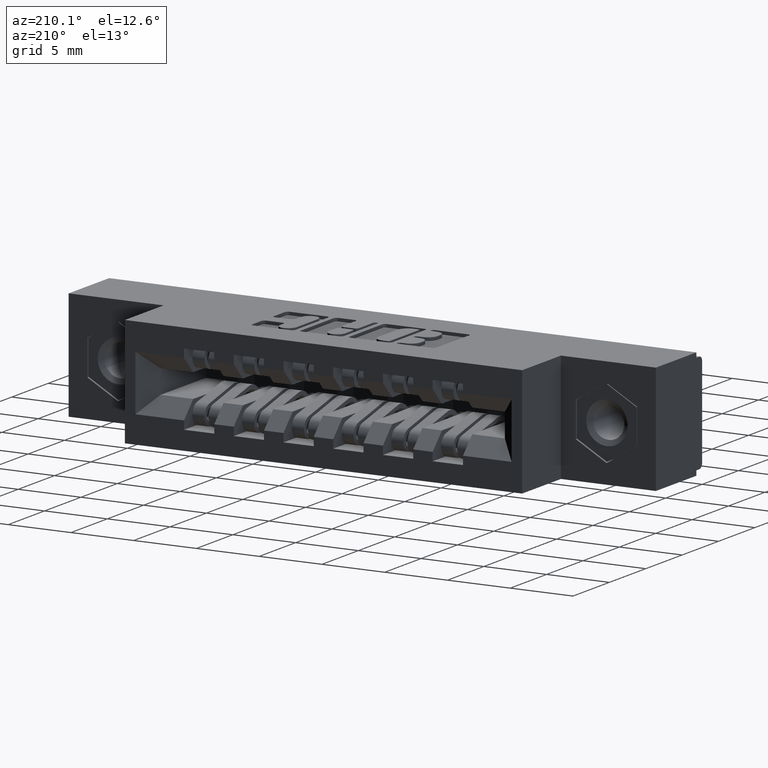
[diagram: clean part render]
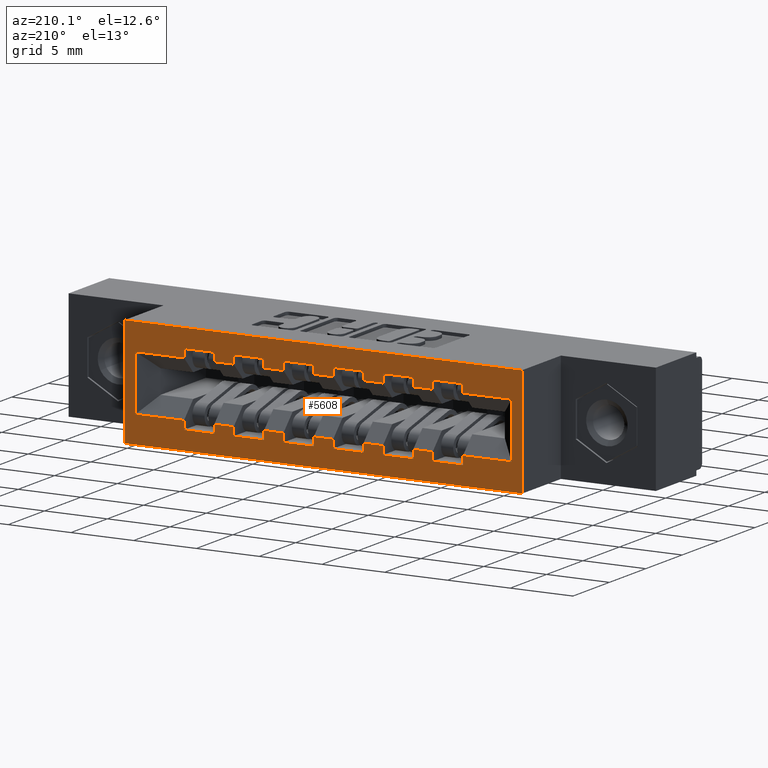
[diagram: same view with one face highlighted and labeled with its STEP entity id]
A machine part, auxiliary view. The second image highlights one B-rep face of the part: STEP entity #5608.
In plain terms, the highlighted planar face has unit normal (0, -1, 0).
Its self-contained STEP definition (entity closure, byte-faithful):
#9 = VECTOR ( 'NONE', #1275, 39.37007874015748100 ) ;
#32 = EDGE_CURVE ( 'NONE', #1190, #9764, #11883, .T. ) ;
#78 = DIRECTION ( 'NONE',  ( 1.000000000000000000, 0.0000000000000000000, 0.0000000000000000000 ) ) ;
#107 = LINE ( 'NONE', #4236, #10825 ) ;
#135 = ORIENTED_EDGE ( 'NONE', *, *, #2399, .T. ) ;
#174 = DIRECTION ( 'NONE',  ( 1.000000000000000000, -0.0000000000000000000, -0.0000000000000000000 ) ) ;
#177 = DIRECTION ( 'NONE',  ( 0.0000000000000000000, 0.0000000000000000000, 1.000000000000000000 ) ) ;
#189 = EDGE_CURVE ( 'NONE', #8305, #11585, #8267, .T. ) ;
#203 = VERTEX_POINT ( 'NONE', #1445 ) ;
#231 = VERTEX_POINT ( 'NONE', #4532 ) ;
#251 = CARTESIAN_POINT ( 'NONE',  ( 0.6395000000000020700, 0.4600000000000000200, -0.2845000000000002500 ) ) ;
#278 = VERTEX_POINT ( 'NONE', #9221 ) ;
#322 = EDGE_CURVE ( 'NONE', #4483, #11876, #4899, .T. ) ;
#334 = ORIENTED_EDGE ( 'NONE', *, *, #7805, .F. ) ;
#373 = CARTESIAN_POINT ( 'NONE',  ( 1.263500000000002100, 0.4600000000000000200, -0.08450000000000021400 ) ) ;
#376 = DIRECTION ( 'NONE',  ( -0.0000000000000000000, -0.0000000000000000000, 1.000000000000000000 ) ) ;
#397 = VECTOR ( 'NONE', #5510, 39.37007874015748100 ) ;
#420 = DIRECTION ( 'NONE',  ( -1.000000000000000000, 0.0000000000000000000, 0.0000000000000000000 ) ) ;
#430 = CARTESIAN_POINT ( 'NONE',  ( 0.6395000000000020700, 0.4600000000000000200, -0.05850000000000024600 ) ) ;
#434 = VECTOR ( 'NONE', #8488, 39.37007874015748100 ) ;
#528 = LINE ( 'NONE', #10393, #9610 ) ;
#552 = VECTOR ( 'NONE', #4460, 39.37007874015748100 ) ;
#553 = EDGE_CURVE ( 'NONE', #6314, #874, #12016, .T. ) ;
#567 = LINE ( 'NONE', #373, #10691 ) ;
#596 = DIRECTION ( 'NONE',  ( 0.0000000000000000000, 0.0000000000000000000, 1.000000000000000000 ) ) ;
#645 = ORIENTED_EDGE ( 'NONE', *, *, #10982, .T. ) ;
#835 = EDGE_CURVE ( 'NONE', #11053, #7250, #2498, .T. ) ;
#850 = VECTOR ( 'NONE', #5831, 39.37007874015748100 ) ;
#855 = DIRECTION ( 'NONE',  ( -0.0000000000000000000, -0.0000000000000000000, 1.000000000000000000 ) ) ;
#874 = VERTEX_POINT ( 'NONE', #6715 ) ;
#892 = VERTEX_POINT ( 'NONE', #9611 ) ;
#909 = VERTEX_POINT ( 'NONE', #12288 ) ;
#932 = ORIENTED_EDGE ( 'NONE', *, *, #5735, .F. ) ;
#974 = LINE ( 'NONE', #4375, #1569 ) ;
#1001 = EDGE_CURVE ( 'NONE', #278, #1085, #3075, .T. ) ;
#1003 = LINE ( 'NONE', #2609, #3221 ) ;
#1012 = DIRECTION ( 'NONE',  ( 1.000000000000000000, 0.0000000000000000000, 0.0000000000000000000 ) ) ;
#1032 = EDGE_CURVE ( 'NONE', #7010, #8651, #2182, .T. ) ;
#1082 = VERTEX_POINT ( 'NONE', #1231 ) ;
#1085 = VERTEX_POINT ( 'NONE', #10648 ) ;
#1114 = VERTEX_POINT ( 'NONE', #8967 ) ;
#1124 = LINE ( 'NONE', #11363, #12129 ) ;
#1163 = EDGE_CURVE ( 'NONE', #7263, #10275, #567, .T. ) ;
#1190 = VERTEX_POINT ( 'NONE', #9302 ) ;
#1231 = CARTESIAN_POINT ( 'NONE',  ( 1.511000000000002800, 0.4600000000000000200, -0.2585000000000002900 ) ) ;
#1238 = CARTESIAN_POINT ( 'NONE',  ( 0.6395000000000020700, 0.4600000000000000200, -0.2585000000000002900 ) ) ;
#1244 = CARTESIAN_POINT ( 'NONE',  ( 0.4835000000000020400, 0.4600000000000000200, -0.2585000000000002900 ) ) ;
#1250 = DIRECTION ( 'NONE',  ( 1.000000000000000000, -0.0000000000000000000, -0.0000000000000000000 ) ) ;
#1275 = DIRECTION ( 'NONE',  ( 1.000000000000000000, 0.0000000000000000000, 0.0000000000000000000 ) ) ;
#1277 = ORIENTED_EDGE ( 'NONE', *, *, #1032, .F. ) ;
#1283 = VECTOR ( 'NONE', #6217, 39.37007874015748100 ) ;
#1307 = CARTESIAN_POINT ( 'NONE',  ( 1.263500000000002100, 0.4600000000000000200, -0.05850000000000024600 ) ) ;
#1316 = EDGE_CURVE ( 'NONE', #11053, #5771, #8440, .T. ) ;
#1332 = VERTEX_POINT ( 'NONE', #3799 ) ;
#1346 = VERTEX_POINT ( 'NONE', #3845 ) ;
#1360 = VERTEX_POINT ( 'NONE', #6739 ) ;
#1430 = LINE ( 'NONE', #2660, #10061 ) ;
#1435 = LINE ( 'NONE', #2946, #4561 ) ;
#1445 = CARTESIAN_POINT ( 'NONE',  ( 1.358500000000001800, 0.4600000000000000200, -0.08450000000000021400 ) ) ;
#1449 = EDGE_CURVE ( 'NONE', #9267, #10489, #6515, .T. ) ;
#1488 = CARTESIAN_POINT ( 'NONE',  ( 0.0000000000000000000, 0.4600000000000000200, -0.2585000000000002900 ) ) ;
#1489 = LINE ( 'NONE', #1882, #5667 ) ;
#1545 = DIRECTION ( 'NONE',  ( 1.000000000000000000, -0.0000000000000000000, -0.0000000000000000000 ) ) ;
#1559 = EDGE_CURVE ( 'NONE', #909, #10972, #107, .T. ) ;
#1569 = VECTOR ( 'NONE', #6294, 39.37007874015748100 ) ;
#1590 = DIRECTION ( 'NONE',  ( 0.0000000000000000000, 0.0000000000000000000, 1.000000000000000000 ) ) ;
#1592 = LINE ( 'NONE', #2244, #12293 ) ;
#1612 = CARTESIAN_POINT ( 'NONE',  ( 1.358500000000001800, 0.4600000000000000200, -0.2845000000000002500 ) ) ;
#1617 = VECTOR ( 'NONE', #10244, 39.37007874015748100 ) ;
#1650 = LINE ( 'NONE', #2330, #7777 ) ;
#1697 = ORIENTED_EDGE ( 'NONE', *, *, #11688, .F. ) ;
#1720 = VECTOR ( 'NONE', #11564, 39.37007874015748100 ) ;
#1754 = LINE ( 'NONE', #1238, #11130 ) ;
#1783 = DIRECTION ( 'NONE',  ( 0.0000000000000000000, 0.0000000000000000000, -1.000000000000000000 ) ) ;
#1798 = CARTESIAN_POINT ( 'NONE',  ( 1.107500000000002100, 0.4600000000000000200, -0.2585000000000002900 ) ) ;
#1863 = VECTOR ( 'NONE', #9905, 39.37007874015748100 ) ;
#1865 = ORIENTED_EDGE ( 'NONE', *, *, #5960, .T. ) ;
#1882 = CARTESIAN_POINT ( 'NONE',  ( 0.8905000000000020700, 0.4600000000000000200, -0.2585000000000002900 ) ) ;
#1963 = VERTEX_POINT ( 'NONE', #10157 ) ;
#2015 = VERTEX_POINT ( 'NONE', #5659 ) ;
#2047 = EDGE_CURVE ( 'NONE', #5909, #203, #3351, .T. ) ;
#2063 = EDGE_CURVE ( 'NONE', #1332, #8651, #7691, .T. ) ;
#2098 = DIRECTION ( 'NONE',  ( 1.000000000000000000, -0.0000000000000000000, -0.0000000000000000000 ) ) ;
#2166 = LINE ( 'NONE', #6330, #552 ) ;
#2168 = DIRECTION ( 'NONE',  ( 0.0000000000000000000, 0.0000000000000000000, 1.000000000000000000 ) ) ;
#2182 = LINE ( 'NONE', #7873, #4438 ) ;
#2207 = LINE ( 'NONE', #9272, #1617 ) ;
#2244 = CARTESIAN_POINT ( 'NONE',  ( 0.7955000000000020900, 0.4600000000000000200, -0.05850000000000024600 ) ) ;
#2323 = EDGE_CURVE ( 'NONE', #909, #10008, #3034, .T. ) ;
#2330 = CARTESIAN_POINT ( 'NONE',  ( 1.263500000000002100, 0.4600000000000000200, -0.2845000000000002500 ) ) ;
#2372 = DIRECTION ( 'NONE',  ( 1.000000000000000000, -0.0000000000000000000, -0.0000000000000000000 ) ) ;
#2389 = ORIENTED_EDGE ( 'NONE', *, *, #5234, .T. ) ;
#2399 = EDGE_CURVE ( 'NONE', #2015, #8711, #1124, .T. ) ;
#2454 = EDGE_CURVE ( 'NONE', #7250, #1963, #11840, .T. ) ;
#2485 = VECTOR ( 'NONE', #9618, 39.37007874015748100 ) ;
#2498 = LINE ( 'NONE', #11425, #434 ) ;
#2509 = EDGE_CURVE ( 'NONE', #10008, #5497, #1435, .T. ) ;
#2548 = EDGE_LOOP ( 'NONE', ( #2875, #3645, #9530, #5025, #9592, #9402, #2389, #334, #11941, #9605, #2961, #1277, #932, #6733, #9344, #9488, #6691, #4915, #5798, #4332, #2676, #8455, #11193, #7210, #4903, #7943, #11581, #10913, #6822, #11171, #2932, #645, #8955, #12228, #1865, #10479, #6353, #5772, #4756, #9425, #1697, #4474, #7222, #9436, #10140, #135, #6161, #3800, #2602, #12180, #12193, #4805 ) ) ;
#2598 = EDGE_CURVE ( 'NONE', #2015, #7481, #974, .T. ) ;
#2600 = VECTOR ( 'NONE', #8579, 39.37007874015748100 ) ;
#2602 = ORIENTED_EDGE ( 'NONE', *, *, #1316, .F. ) ;
#2609 = CARTESIAN_POINT ( 'NONE',  ( 0.3310000000000020700, 0.4600000000000000200, -0.3430000000000000300 ) ) ;
#2611 = LINE ( 'NONE', #5581, #7403 ) ;
#2644 = CARTESIAN_POINT ( 'NONE',  ( 1.202500000000001900, 0.4600000000000000200, -0.2845000000000002500 ) ) ;
#2647 = DIRECTION ( 'NONE',  ( 0.0000000000000000000, 0.0000000000000000000, 1.000000000000000000 ) ) ;
#2660 = CARTESIAN_POINT ( 'NONE',  ( 0.0000000000000000000, 0.4600000000000000200, -0.2585000000000002900 ) ) ;
#2676 = ORIENTED_EDGE ( 'NONE', *, *, #1559, .F. ) ;
#2710 = VERTEX_POINT ( 'NONE', #1612 ) ;
#2741 = LINE ( 'NONE', #7474, #397 ) ;
#2745 = LINE ( 'NONE', #9866, #9318 ) ;
#2771 = EDGE_CURVE ( 'NONE', #6227, #4884, #10218, .T. ) ;
#2781 = CARTESIAN_POINT ( 'NONE',  ( 0.5785000000000020100, 0.4600000000000000200, -0.2845000000000002500 ) ) ;
#2801 = CARTESIAN_POINT ( 'NONE',  ( 1.202500000000001900, 0.4600000000000000200, -0.08450000000000021400 ) ) ;
#2834 = DIRECTION ( 'NONE',  ( 0.0000000000000000000, 0.0000000000000000000, 1.000000000000000000 ) ) ;
#2871 = CARTESIAN_POINT ( 'NONE',  ( 0.4835000000000020400, 0.4600000000000000200, -0.05850000000000024600 ) ) ;
#2875 = ORIENTED_EDGE ( 'NONE', *, *, #10597, .F. ) ;
#2932 = ORIENTED_EDGE ( 'NONE', *, *, #3538, .T. ) ;
#2946 = CARTESIAN_POINT ( 'NONE',  ( 0.7345000000000019300, 0.4600000000000000200, -0.08450000000000021400 ) ) ;
#2961 = ORIENTED_EDGE ( 'NONE', *, *, #2063, .T. ) ;
#3008 = FACE_OUTER_BOUND ( 'NONE', #7143, .T. ) ;
#3020 = VECTOR ( 'NONE', #596, 39.37007874015748100 ) ;
#3034 = LINE ( 'NONE', #9512, #7090 ) ;
#3041 = CARTESIAN_POINT ( 'NONE',  ( 0.0000000000000000000, 0.4600000000000000200, -0.08450000000000021400 ) ) ;
#3045 = CARTESIAN_POINT ( 'NONE',  ( 1.263500000000002100, 0.4600000000000000200, -0.05850000000000024600 ) ) ;
#3059 = DIRECTION ( 'NONE',  ( -0.0000000000000000000, -0.0000000000000000000, 1.000000000000000000 ) ) ;
#3075 = LINE ( 'NONE', #251, #5318 ) ;
#3112 = PLANE ( 'NONE',  #12231 ) ;
#3160 = LINE ( 'NONE', #10886, #8533 ) ;
#3166 = DIRECTION ( 'NONE',  ( -0.0000000000000000000, -0.0000000000000000000, 1.000000000000000000 ) ) ;
#3221 = VECTOR ( 'NONE', #1783, 39.37007874015748100 ) ;
#3267 = ORIENTED_EDGE ( 'NONE', *, *, #10644, .F. ) ;
#3279 = VERTEX_POINT ( 'NONE', #3476 ) ;
#3293 = VERTEX_POINT ( 'NONE', #3441 ) ;
#3313 = DIRECTION ( 'NONE',  ( 1.000000000000000000, -0.0000000000000000000, -0.0000000000000000000 ) ) ;
#3351 = LINE ( 'NONE', #7536, #11680 ) ;
#3379 = VERTEX_POINT ( 'NONE', #6390 ) ;
#3380 = EDGE_CURVE ( 'NONE', #1346, #1360, #6384, .T. ) ;
#3414 = VERTEX_POINT ( 'NONE', #7226 ) ;
#3441 = CARTESIAN_POINT ( 'NONE',  ( 0.5785000000000020100, 0.4600000000000000200, -0.08450000000000021400 ) ) ;
#3462 = LINE ( 'NONE', #7814, #10786 ) ;
#3476 = CARTESIAN_POINT ( 'NONE',  ( 0.6395000000000020700, 0.4600000000000000200, -0.2585000000000002900 ) ) ;
#3538 = EDGE_CURVE ( 'NONE', #10489, #6333, #1003, .T. ) ;
#3584 = EDGE_CURVE ( 'NONE', #231, #892, #7867, .T. ) ;
#3645 = ORIENTED_EDGE ( 'NONE', *, *, #6915, .T. ) ;
#3709 = VECTOR ( 'NONE', #6002, 39.37007874015748100 ) ;
#3725 = EDGE_CURVE ( 'NONE', #10972, #4884, #1592, .T. ) ;
#3770 = CARTESIAN_POINT ( 'NONE',  ( 1.046500000000002000, 0.4600000000000000200, -0.2845000000000002500 ) ) ;
#3799 = CARTESIAN_POINT ( 'NONE',  ( 1.202500000000001900, 0.4600000000000000200, -0.08450000000000021400 ) ) ;
#3800 = ORIENTED_EDGE ( 'NONE', *, *, #11573, .T. ) ;
#3845 = CARTESIAN_POINT ( 'NONE',  ( 0.7955000000000020900, 0.4600000000000000200, -0.2845000000000002500 ) ) ;
#3889 = DIRECTION ( 'NONE',  ( 1.000000000000000000, 0.0000000000000000000, 0.0000000000000000000 ) ) ;
#3921 = VERTEX_POINT ( 'NONE', #12031 ) ;
#4002 = EDGE_CURVE ( 'NONE', #8711, #6510, #2166, .T. ) ;
#4014 = DIRECTION ( 'NONE',  ( -1.000000000000000000, 0.0000000000000000000, 0.0000000000000000000 ) ) ;
#4016 = CARTESIAN_POINT ( 'NONE',  ( 0.8905000000000020700, 0.4600000000000000200, -0.08450000000000021400 ) ) ;
#4022 = LINE ( 'NONE', #9768, #3709 ) ;
#4029 = CARTESIAN_POINT ( 'NONE',  ( 0.9515000000000021200, 0.4600000000000000200, -0.2585000000000002900 ) ) ;
#4090 = DIRECTION ( 'NONE',  ( 0.0000000000000000000, -1.000000000000000000, 0.0000000000000000000 ) ) ;
#4105 = CARTESIAN_POINT ( 'NONE',  ( 0.8905000000000020700, 0.4600000000000000200, -0.05850000000000024600 ) ) ;
#4218 = CARTESIAN_POINT ( 'NONE',  ( 0.7345000000000019300, 0.4600000000000000200, -0.05850000000000024600 ) ) ;
#4236 = CARTESIAN_POINT ( 'NONE',  ( 0.7955000000000020900, 0.4600000000000000200, -0.08450000000000021400 ) ) ;
#4321 = EDGE_CURVE ( 'NONE', #8305, #3293, #6073, .T. ) ;
#4332 = ORIENTED_EDGE ( 'NONE', *, *, #3725, .F. ) ;
#4340 = VERTEX_POINT ( 'NONE', #11634 ) ;
#4342 = ORIENTED_EDGE ( 'NONE', *, *, #5244, .T. ) ;
#4375 = CARTESIAN_POINT ( 'NONE',  ( 0.9515000000000021200, 0.4600000000000000200, -0.2585000000000002900 ) ) ;
#4438 = VECTOR ( 'NONE', #174, 39.37007874015748100 ) ;
#4460 = DIRECTION ( 'NONE',  ( -0.0000000000000000000, -0.0000000000000000000, 1.000000000000000000 ) ) ;
#4474 = ORIENTED_EDGE ( 'NONE', *, *, #3380, .T. ) ;
#4483 = VERTEX_POINT ( 'NONE', #10568 ) ;
#4532 = CARTESIAN_POINT ( 'NONE',  ( 1.544000000000000700, 0.4600000000000000200, -0.3430000000000000300 ) ) ;
#4561 = VECTOR ( 'NONE', #11644, 39.37007874015748100 ) ;
#4608 = DIRECTION ( 'NONE',  ( -1.000000000000000000, 0.0000000000000000000, 0.0000000000000000000 ) ) ;
#4688 = DIRECTION ( 'NONE',  ( 0.0000000000000000000, 0.0000000000000000000, 1.000000000000000000 ) ) ;
#4698 = LINE ( 'NONE', #9201, #8416 ) ;
#4731 = LINE ( 'NONE', #6792, #5767 ) ;
#4733 = VECTOR ( 'NONE', #1012, 39.37007874015748100 ) ;
#4734 = EDGE_CURVE ( 'NONE', #7263, #1332, #5440, .T. ) ;
#4756 = ORIENTED_EDGE ( 'NONE', *, *, #8126, .T. ) ;
#4805 = ORIENTED_EDGE ( 'NONE', *, *, #10103, .T. ) ;
#4812 = CARTESIAN_POINT ( 'NONE',  ( 0.4835000000000020400, 0.4600000000000000200, -0.08450000000000021400 ) ) ;
#4874 = CARTESIAN_POINT ( 'NONE',  ( 0.4835000000000020400, 0.4600000000000000200, -0.2585000000000002900 ) ) ;
#4884 = VERTEX_POINT ( 'NONE', #4105 ) ;
#4899 = LINE ( 'NONE', #2871, #8613 ) ;
#4903 = ORIENTED_EDGE ( 'NONE', *, *, #189, .F. ) ;
#4915 = ORIENTED_EDGE ( 'NONE', *, *, #11026, .T. ) ;
#4966 = CARTESIAN_POINT ( 'NONE',  ( 0.0000000000000000000, 0.4600000000000000200, 0.0000000000000000000 ) ) ;
#5025 = ORIENTED_EDGE ( 'NONE', *, *, #11061, .T. ) ;
#5026 = LINE ( 'NONE', #11484, #850 ) ;
#5111 = EDGE_CURVE ( 'NONE', #2710, #6750, #11526, .T. ) ;
#5129 = LINE ( 'NONE', #8217, #7520 ) ;
#5141 = VECTOR ( 'NONE', #420, 39.37007874015748100 ) ;
#5154 = EDGE_CURVE ( 'NONE', #9267, #4483, #4698, .T. ) ;
#5185 = VECTOR ( 'NONE', #1545, 39.37007874015748100 ) ;
#5234 = EDGE_CURVE ( 'NONE', #203, #4340, #5902, .T. ) ;
#5244 = EDGE_CURVE ( 'NONE', #231, #5278, #5129, .T. ) ;
#5278 = VERTEX_POINT ( 'NONE', #6599 ) ;
#5318 = VECTOR ( 'NONE', #2098, 39.37007874015748100 ) ;
#5440 = LINE ( 'NONE', #6125, #5141 ) ;
#5448 = DIRECTION ( 'NONE',  ( -0.0000000000000000000, -0.0000000000000000000, 1.000000000000000000 ) ) ;
#5493 = VECTOR ( 'NONE', #8684, 39.37007874015748100 ) ;
#5497 = VERTEX_POINT ( 'NONE', #4218 ) ;
#5506 = VECTOR ( 'NONE', #2168, 39.37007874015748100 ) ;
#5510 = DIRECTION ( 'NONE',  ( 1.000000000000000000, 0.0000000000000000000, 0.0000000000000000000 ) ) ;
#5557 = DIRECTION ( 'NONE',  ( 1.000000000000000000, 0.0000000000000000000, 0.0000000000000000000 ) ) ;
#5581 = CARTESIAN_POINT ( 'NONE',  ( 1.511000000000002800, 0.4600000000000000200, -0.3430000000000000300 ) ) ;
#5608 = ADVANCED_FACE ( 'NONE', ( #3008, #12092 ), #3112, .F. ) ;
#5659 = CARTESIAN_POINT ( 'NONE',  ( 0.9515000000000021200, 0.4600000000000000200, -0.2845000000000002500 ) ) ;
#5667 = VECTOR ( 'NONE', #855, 39.37007874015748100 ) ;
#5692 = LINE ( 'NONE', #8982, #9996 ) ;
#5735 = EDGE_CURVE ( 'NONE', #9760, #7010, #6469, .T. ) ;
#5765 = CARTESIAN_POINT ( 'NONE',  ( 0.0000000000000000000, 0.4600000000000000200, -0.08450000000000021400 ) ) ;
#5767 = VECTOR ( 'NONE', #3059, 39.37007874015748100 ) ;
#5771 = VERTEX_POINT ( 'NONE', #1798 ) ;
#5772 = ORIENTED_EDGE ( 'NONE', *, *, #1001, .T. ) ;
#5798 = ORIENTED_EDGE ( 'NONE', *, *, #2771, .T. ) ;
#5815 = EDGE_CURVE ( 'NONE', #3921, #3279, #3462, .T. ) ;
#5831 = DIRECTION ( 'NONE',  ( 0.0000000000000000000, 0.0000000000000000000, 1.000000000000000000 ) ) ;
#5843 = CARTESIAN_POINT ( 'NONE',  ( 1.202500000000001900, 0.4600000000000000200, -0.05850000000000024600 ) ) ;
#5873 = CARTESIAN_POINT ( 'NONE',  ( 0.9515000000000021200, 0.4600000000000000200, -0.08450000000000021400 ) ) ;
#5902 = LINE ( 'NONE', #11154, #3020 ) ;
#5909 = VERTEX_POINT ( 'NONE', #11485 ) ;
#5910 = VECTOR ( 'NONE', #4608, 39.37007874015748100 ) ;
#5927 = VECTOR ( 'NONE', #9563, 39.37007874015748100 ) ;
#5960 = EDGE_CURVE ( 'NONE', #9599, #3921, #3160, .T. ) ;
#5966 = VECTOR ( 'NONE', #8681, 39.37007874015748100 ) ;
#6002 = DIRECTION ( 'NONE',  ( 1.000000000000000000, -0.0000000000000000000, -0.0000000000000000000 ) ) ;
#6073 = LINE ( 'NONE', #10662, #11108 ) ;
#6106 = CARTESIAN_POINT ( 'NONE',  ( 1.046500000000002000, 0.4600000000000000200, -0.08450000000000021400 ) ) ;
#6125 = CARTESIAN_POINT ( 'NONE',  ( 0.0000000000000000000, 0.4600000000000000200, -0.08450000000000021400 ) ) ;
#6131 = DIRECTION ( 'NONE',  ( 0.0000000000000000000, 0.0000000000000000000, 1.000000000000000000 ) ) ;
#6161 = ORIENTED_EDGE ( 'NONE', *, *, #4002, .T. ) ;
#6217 = DIRECTION ( 'NONE',  ( 1.000000000000000000, 0.0000000000000000000, 0.0000000000000000000 ) ) ;
#6227 = VERTEX_POINT ( 'NONE', #4016 ) ;
#6239 = LINE ( 'NONE', #4966, #4733 ) ;
#6257 = VERTEX_POINT ( 'NONE', #5873 ) ;
#6262 = CARTESIAN_POINT ( 'NONE',  ( 1.107500000000002100, 0.4600000000000000200, -0.08450000000000021400 ) ) ;
#6294 = DIRECTION ( 'NONE',  ( -0.0000000000000000000, -0.0000000000000000000, 1.000000000000000000 ) ) ;
#6314 = VERTEX_POINT ( 'NONE', #6990 ) ;
#6330 = CARTESIAN_POINT ( 'NONE',  ( 1.046500000000002000, 0.4600000000000000200, -0.2585000000000002900 ) ) ;
#6333 = VERTEX_POINT ( 'NONE', #10889 ) ;
#6353 = ORIENTED_EDGE ( 'NONE', *, *, #8537, .F. ) ;
#6382 = ORIENTED_EDGE ( 'NONE', *, *, #9231, .T. ) ;
#6384 = LINE ( 'NONE', #9116, #5185 ) ;
#6390 = CARTESIAN_POINT ( 'NONE',  ( 0.7955000000000020900, 0.4600000000000000200, -0.2585000000000002900 ) ) ;
#6469 = LINE ( 'NONE', #6262, #11209 ) ;
#6496 = DIRECTION ( 'NONE',  ( -1.000000000000000000, 0.0000000000000000000, 0.0000000000000000000 ) ) ;
#6510 = VERTEX_POINT ( 'NONE', #8220 ) ;
#6515 = LINE ( 'NONE', #3041, #8593 ) ;
#6599 = CARTESIAN_POINT ( 'NONE',  ( 0.2979999999999999900, 0.4600000000000000200, -0.3430000000000000300 ) ) ;
#6618 = DIRECTION ( 'NONE',  ( 1.000000000000000000, -0.0000000000000000000, -0.0000000000000000000 ) ) ;
#6691 = ORIENTED_EDGE ( 'NONE', *, *, #7796, .F. ) ;
#6715 = CARTESIAN_POINT ( 'NONE',  ( 1.046500000000002000, 0.4600000000000000200, -0.05850000000000024600 ) ) ;
#6732 = DIRECTION ( 'NONE',  ( 1.000000000000000000, -0.0000000000000000000, -0.0000000000000000000 ) ) ;
#6733 = ORIENTED_EDGE ( 'NONE', *, *, #8352, .T. ) ;
#6739 = CARTESIAN_POINT ( 'NONE',  ( 0.8905000000000020700, 0.4600000000000000200, -0.2845000000000002500 ) ) ;
#6750 = VERTEX_POINT ( 'NONE', #12262 ) ;
#6792 = CARTESIAN_POINT ( 'NONE',  ( 1.263500000000002100, 0.4600000000000000200, -0.2585000000000002900 ) ) ;
#6822 = ORIENTED_EDGE ( 'NONE', *, *, #5154, .F. ) ;
#6866 = CARTESIAN_POINT ( 'NONE',  ( 0.0000000000000000000, 0.4600000000000000200, -0.2585000000000002900 ) ) ;
#6915 = EDGE_CURVE ( 'NONE', #10174, #2710, #1650, .T. ) ;
#6945 = EDGE_CURVE ( 'NONE', #11585, #5497, #5692, .T. ) ;
#6950 = VECTOR ( 'NONE', #11827, 39.37007874015748100 ) ;
#6956 = CARTESIAN_POINT ( 'NONE',  ( 0.2979999999999999900, 0.4600000000000000200, 0.0000000000000000000 ) ) ;
#6990 = CARTESIAN_POINT ( 'NONE',  ( 0.9515000000000021200, 0.4600000000000000200, -0.05850000000000024600 ) ) ;
#7010 = VERTEX_POINT ( 'NONE', #9874 ) ;
#7054 = VERTEX_POINT ( 'NONE', #6106 ) ;
#7064 = CARTESIAN_POINT ( 'NONE',  ( 1.358500000000001800, 0.4600000000000000200, -0.2585000000000002900 ) ) ;
#7090 = VECTOR ( 'NONE', #11445, 39.37007874015748100 ) ;
#7143 = EDGE_LOOP ( 'NONE', ( #6382, #7561, #4342, #3267 ) ) ;
#7210 = ORIENTED_EDGE ( 'NONE', *, *, #6945, .F. ) ;
#7215 = DIRECTION ( 'NONE',  ( 0.0000000000000000000, 0.0000000000000000000, 1.000000000000000000 ) ) ;
#7222 = ORIENTED_EDGE ( 'NONE', *, *, #7679, .T. ) ;
#7226 = CARTESIAN_POINT ( 'NONE',  ( 0.8905000000000020700, 0.4600000000000000200, -0.2585000000000002900 ) ) ;
#7250 = VERTEX_POINT ( 'NONE', #2644 ) ;
#7253 = VECTOR ( 'NONE', #2834, 39.37007874015748100 ) ;
#7263 = VERTEX_POINT ( 'NONE', #10248 ) ;
#7393 = CARTESIAN_POINT ( 'NONE',  ( 0.5785000000000020100, 0.4600000000000000200, -0.05850000000000024600 ) ) ;
#7403 = VECTOR ( 'NONE', #177, 39.37007874015748100 ) ;
#7430 = EDGE_CURVE ( 'NONE', #1114, #3379, #10728, .T. ) ;
#7465 = CARTESIAN_POINT ( 'NONE',  ( 0.3310000000000020700, 0.4600000000000000200, -0.08450000000000021400 ) ) ;
#7474 = CARTESIAN_POINT ( 'NONE',  ( 0.0000000000000000000, 0.4600000000000000200, -0.2585000000000002900 ) ) ;
#7481 = VERTEX_POINT ( 'NONE', #4029 ) ;
#7494 = EDGE_CURVE ( 'NONE', #1190, #9599, #4022, .T. ) ;
#7520 = VECTOR ( 'NONE', #11079, 39.37007874015748100 ) ;
#7536 = CARTESIAN_POINT ( 'NONE',  ( 0.0000000000000000000, 0.4600000000000000200, -0.08450000000000021400 ) ) ;
#7539 = LINE ( 'NONE', #11475, #2600 ) ;
#7561 = ORIENTED_EDGE ( 'NONE', *, *, #3584, .F. ) ;
#7592 = CARTESIAN_POINT ( 'NONE',  ( 0.6395000000000020700, 0.4600000000000000200, -0.08450000000000021400 ) ) ;
#7679 = EDGE_CURVE ( 'NONE', #1360, #3414, #1489, .T. ) ;
#7691 = LINE ( 'NONE', #2801, #7253 ) ;
#7697 = LINE ( 'NONE', #10312, #5910 ) ;
#7777 = VECTOR ( 'NONE', #2372, 39.37007874015748100 ) ;
#7796 = EDGE_CURVE ( 'NONE', #6257, #6314, #12175, .T. ) ;
#7805 = EDGE_CURVE ( 'NONE', #10275, #4340, #9677, .T. ) ;
#7814 = CARTESIAN_POINT ( 'NONE',  ( 0.0000000000000000000, 0.4600000000000000200, -0.2585000000000002900 ) ) ;
#7867 = LINE ( 'NONE', #10501, #2485 ) ;
#7873 = CARTESIAN_POINT ( 'NONE',  ( 1.107500000000002100, 0.4600000000000000200, -0.05850000000000024600 ) ) ;
#7920 = DIRECTION ( 'NONE',  ( 1.000000000000000000, -0.0000000000000000000, -0.0000000000000000000 ) ) ;
#7925 = DIRECTION ( 'NONE',  ( 0.0000000000000000000, -0.0000000000000000000, -1.000000000000000000 ) ) ;
#7943 = ORIENTED_EDGE ( 'NONE', *, *, #4321, .T. ) ;
#8082 = CARTESIAN_POINT ( 'NONE',  ( 1.107500000000002100, 0.4600000000000000200, -0.08450000000000021400 ) ) ;
#8126 = EDGE_CURVE ( 'NONE', #1085, #1114, #2207, .T. ) ;
#8217 = CARTESIAN_POINT ( 'NONE',  ( 0.0000000000000000000, 0.4600000000000000200, -0.3430000000000000300 ) ) ;
#8220 = CARTESIAN_POINT ( 'NONE',  ( 1.046500000000002000, 0.4600000000000000200, -0.2585000000000002900 ) ) ;
#8267 = LINE ( 'NONE', #8368, #10647 ) ;
#8284 = LINE ( 'NONE', #1488, #1283 ) ;
#8305 = VERTEX_POINT ( 'NONE', #7592 ) ;
#8322 = LINE ( 'NONE', #5765, #5493 ) ;
#8352 = EDGE_CURVE ( 'NONE', #9760, #7054, #8322, .T. ) ;
#8368 = CARTESIAN_POINT ( 'NONE',  ( 0.6395000000000020700, 0.4600000000000000200, -0.08450000000000021400 ) ) ;
#8416 = VECTOR ( 'NONE', #1590, 39.37007874015748100 ) ;
#8440 = LINE ( 'NONE', #8663, #5927 ) ;
#8455 = ORIENTED_EDGE ( 'NONE', *, *, #2323, .T. ) ;
#8488 = DIRECTION ( 'NONE',  ( 1.000000000000000000, -0.0000000000000000000, -0.0000000000000000000 ) ) ;
#8533 = VECTOR ( 'NONE', #3166, 39.37007874015748100 ) ;
#8537 = EDGE_CURVE ( 'NONE', #278, #3279, #1754, .T. ) ;
#8579 = DIRECTION ( 'NONE',  ( 1.000000000000000000, 0.0000000000000000000, 0.0000000000000000000 ) ) ;
#8593 = VECTOR ( 'NONE', #4014, 39.37007874015748100 ) ;
#8613 = VECTOR ( 'NONE', #6618, 39.37007874015748100 ) ;
#8651 = VERTEX_POINT ( 'NONE', #5843 ) ;
#8663 = CARTESIAN_POINT ( 'NONE',  ( 1.107500000000002100, 0.4600000000000000200, -0.2585000000000002900 ) ) ;
#8681 = DIRECTION ( 'NONE',  ( -0.0000000000000000000, -0.0000000000000000000, 1.000000000000000000 ) ) ;
#8682 = VERTEX_POINT ( 'NONE', #10609 ) ;
#8684 = DIRECTION ( 'NONE',  ( -1.000000000000000000, 0.0000000000000000000, 0.0000000000000000000 ) ) ;
#8711 = VERTEX_POINT ( 'NONE', #3770 ) ;
#8767 = CARTESIAN_POINT ( 'NONE',  ( 0.2979999999999999900, 0.4600000000000000200, 0.0000000000000000000 ) ) ;
#8792 = CARTESIAN_POINT ( 'NONE',  ( 1.263500000000002100, 0.4600000000000000200, -0.2845000000000002500 ) ) ;
#8860 = LINE ( 'NONE', #6956, #1863 ) ;
#8885 = LINE ( 'NONE', #6866, #11267 ) ;
#8912 = DIRECTION ( 'NONE',  ( 1.000000000000000000, -0.0000000000000000000, -0.0000000000000000000 ) ) ;
#8955 = ORIENTED_EDGE ( 'NONE', *, *, #32, .F. ) ;
#8967 = CARTESIAN_POINT ( 'NONE',  ( 0.7345000000000019300, 0.4600000000000000200, -0.2585000000000002900 ) ) ;
#8982 = CARTESIAN_POINT ( 'NONE',  ( 0.6395000000000020700, 0.4600000000000000200, -0.05850000000000024600 ) ) ;
#9045 = DIRECTION ( 'NONE',  ( 0.0000000000000000000, 0.0000000000000000000, 1.000000000000000000 ) ) ;
#9116 = CARTESIAN_POINT ( 'NONE',  ( 0.7955000000000020900, 0.4600000000000000200, -0.2845000000000002500 ) ) ;
#9201 = CARTESIAN_POINT ( 'NONE',  ( 0.4835000000000020400, 0.4600000000000000200, -0.08450000000000021400 ) ) ;
#9221 = CARTESIAN_POINT ( 'NONE',  ( 0.6395000000000020700, 0.4600000000000000200, -0.2845000000000002500 ) ) ;
#9224 = EDGE_CURVE ( 'NONE', #7054, #874, #5026, .T. ) ;
#9231 = EDGE_CURVE ( 'NONE', #11427, #892, #6239, .T. ) ;
#9267 = VERTEX_POINT ( 'NONE', #4812 ) ;
#9272 = CARTESIAN_POINT ( 'NONE',  ( 0.7345000000000019300, 0.4600000000000000200, -0.2585000000000002900 ) ) ;
#9302 = CARTESIAN_POINT ( 'NONE',  ( 0.4835000000000020400, 0.4600000000000000200, -0.2845000000000002500 ) ) ;
#9318 = VECTOR ( 'NONE', #376, 39.37007874015748100 ) ;
#9344 = ORIENTED_EDGE ( 'NONE', *, *, #9224, .T. ) ;
#9402 = ORIENTED_EDGE ( 'NONE', *, *, #2047, .T. ) ;
#9425 = ORIENTED_EDGE ( 'NONE', *, *, #7430, .T. ) ;
#9436 = ORIENTED_EDGE ( 'NONE', *, *, #11909, .T. ) ;
#9474 = CARTESIAN_POINT ( 'NONE',  ( 0.7345000000000019300, 0.4600000000000000200, -0.08450000000000021400 ) ) ;
#9488 = ORIENTED_EDGE ( 'NONE', *, *, #553, .F. ) ;
#9512 = CARTESIAN_POINT ( 'NONE',  ( 0.0000000000000000000, 0.4600000000000000200, -0.08450000000000021400 ) ) ;
#9530 = ORIENTED_EDGE ( 'NONE', *, *, #5111, .T. ) ;
#9563 = DIRECTION ( 'NONE',  ( -0.0000000000000000000, -0.0000000000000000000, 1.000000000000000000 ) ) ;
#9592 = ORIENTED_EDGE ( 'NONE', *, *, #10495, .T. ) ;
#9599 = VERTEX_POINT ( 'NONE', #2781 ) ;
#9605 = ORIENTED_EDGE ( 'NONE', *, *, #4734, .T. ) ;
#9610 = VECTOR ( 'NONE', #4688, 39.37007874015748100 ) ;
#9611 = CARTESIAN_POINT ( 'NONE',  ( 1.544000000000000700, 0.4600000000000000200, 0.0000000000000000000 ) ) ;
#9618 = DIRECTION ( 'NONE',  ( -0.0000000000000000000, -0.0000000000000000000, 1.000000000000000000 ) ) ;
#9640 = CARTESIAN_POINT ( 'NONE',  ( 0.9515000000000021200, 0.4600000000000000200, -0.08450000000000021400 ) ) ;
#9677 = LINE ( 'NONE', #1307, #11884 ) ;
#9760 = VERTEX_POINT ( 'NONE', #8082 ) ;
#9764 = VERTEX_POINT ( 'NONE', #1244 ) ;
#9768 = CARTESIAN_POINT ( 'NONE',  ( 0.4835000000000020400, 0.4600000000000000200, -0.2845000000000002500 ) ) ;
#9785 = CARTESIAN_POINT ( 'NONE',  ( 0.0000000000000000000, 0.4600000000000000200, -0.3430000000000000300 ) ) ;
#9866 = CARTESIAN_POINT ( 'NONE',  ( 0.7955000000000020900, 0.4600000000000000200, -0.2585000000000002900 ) ) ;
#9874 = CARTESIAN_POINT ( 'NONE',  ( 1.107500000000002100, 0.4600000000000000200, -0.05850000000000024600 ) ) ;
#9905 = DIRECTION ( 'NONE',  ( 0.0000000000000000000, 0.0000000000000000000, -1.000000000000000000 ) ) ;
#9939 = CARTESIAN_POINT ( 'NONE',  ( 0.8905000000000020700, 0.4600000000000000200, -0.08450000000000021400 ) ) ;
#9996 = VECTOR ( 'NONE', #3313, 39.37007874015748100 ) ;
#10008 = VERTEX_POINT ( 'NONE', #9474 ) ;
#10061 = VECTOR ( 'NONE', #5557, 39.37007874015748100 ) ;
#10103 = EDGE_CURVE ( 'NONE', #1963, #8682, #8885, .T. ) ;
#10140 = ORIENTED_EDGE ( 'NONE', *, *, #2598, .F. ) ;
#10157 = CARTESIAN_POINT ( 'NONE',  ( 1.202500000000001900, 0.4600000000000000200, -0.2585000000000002900 ) ) ;
#10174 = VERTEX_POINT ( 'NONE', #8792 ) ;
#10218 = LINE ( 'NONE', #9939, #6950 ) ;
#10244 = DIRECTION ( 'NONE',  ( -0.0000000000000000000, -0.0000000000000000000, 1.000000000000000000 ) ) ;
#10248 = CARTESIAN_POINT ( 'NONE',  ( 1.263500000000002100, 0.4600000000000000200, -0.08450000000000021400 ) ) ;
#10275 = VERTEX_POINT ( 'NONE', #3045 ) ;
#10312 = CARTESIAN_POINT ( 'NONE',  ( 0.0000000000000000000, 0.4600000000000000200, -0.08450000000000021400 ) ) ;
#10393 = CARTESIAN_POINT ( 'NONE',  ( 0.5785000000000020100, 0.4600000000000000200, -0.08450000000000021400 ) ) ;
#10479 = ORIENTED_EDGE ( 'NONE', *, *, #5815, .T. ) ;
#10489 = VERTEX_POINT ( 'NONE', #7465 ) ;
#10495 = EDGE_CURVE ( 'NONE', #1082, #5909, #2611, .T. ) ;
#10501 = CARTESIAN_POINT ( 'NONE',  ( 1.544000000000000700, 0.4600000000000000200, 0.0000000000000000000 ) ) ;
#10568 = CARTESIAN_POINT ( 'NONE',  ( 0.4835000000000020400, 0.4600000000000000200, -0.05850000000000024600 ) ) ;
#10597 = EDGE_CURVE ( 'NONE', #10174, #8682, #4731, .T. ) ;
#10609 = CARTESIAN_POINT ( 'NONE',  ( 1.263500000000002100, 0.4600000000000000200, -0.2585000000000002900 ) ) ;
#10644 = EDGE_CURVE ( 'NONE', #11427, #5278, #8860, .T. ) ;
#10647 = VECTOR ( 'NONE', #2647, 39.37007874015748100 ) ;
#10648 = CARTESIAN_POINT ( 'NONE',  ( 0.7345000000000019300, 0.4600000000000000200, -0.2845000000000002500 ) ) ;
#10662 = CARTESIAN_POINT ( 'NONE',  ( 0.0000000000000000000, 0.4600000000000000200, -0.08450000000000021400 ) ) ;
#10691 = VECTOR ( 'NONE', #6131, 39.37007874015748100 ) ;
#10728 = LINE ( 'NONE', #11707, #9 ) ;
#10786 = VECTOR ( 'NONE', #78, 39.37007874015748100 ) ;
#10825 = VECTOR ( 'NONE', #9045, 39.37007874015748100 ) ;
#10886 = CARTESIAN_POINT ( 'NONE',  ( 0.5785000000000020100, 0.4600000000000000200, -0.2585000000000002900 ) ) ;
#10888 = DIRECTION ( 'NONE',  ( -0.0000000000000000000, -0.0000000000000000000, 1.000000000000000000 ) ) ;
#10889 = CARTESIAN_POINT ( 'NONE',  ( 0.3310000000000020700, 0.4600000000000000200, -0.2585000000000002900 ) ) ;
#10913 = ORIENTED_EDGE ( 'NONE', *, *, #322, .F. ) ;
#10972 = VERTEX_POINT ( 'NONE', #12053 ) ;
#10982 = EDGE_CURVE ( 'NONE', #6333, #9764, #2741, .T. ) ;
#11026 = EDGE_CURVE ( 'NONE', #6257, #6227, #7697, .T. ) ;
#11053 = VERTEX_POINT ( 'NONE', #12261 ) ;
#11061 = EDGE_CURVE ( 'NONE', #6750, #1082, #7539, .T. ) ;
#11079 = DIRECTION ( 'NONE',  ( -1.000000000000000000, -0.0000000000000000000, -0.0000000000000000000 ) ) ;
#11108 = VECTOR ( 'NONE', #11552, 39.37007874015748100 ) ;
#11130 = VECTOR ( 'NONE', #5448, 39.37007874015748100 ) ;
#11154 = CARTESIAN_POINT ( 'NONE',  ( 1.358500000000001800, 0.4600000000000000200, -0.08450000000000021400 ) ) ;
#11171 = ORIENTED_EDGE ( 'NONE', *, *, #1449, .T. ) ;
#11193 = ORIENTED_EDGE ( 'NONE', *, *, #2509, .T. ) ;
#11209 = VECTOR ( 'NONE', #7215, 39.37007874015748100 ) ;
#11267 = VECTOR ( 'NONE', #3889, 39.37007874015748100 ) ;
#11363 = CARTESIAN_POINT ( 'NONE',  ( 0.9515000000000021200, 0.4600000000000000200, -0.2845000000000002500 ) ) ;
#11376 = VECTOR ( 'NONE', #10888, 39.37007874015748100 ) ;
#11425 = CARTESIAN_POINT ( 'NONE',  ( 1.107500000000002100, 0.4600000000000000200, -0.2845000000000002500 ) ) ;
#11427 = VERTEX_POINT ( 'NONE', #8767 ) ;
#11445 = DIRECTION ( 'NONE',  ( -1.000000000000000000, 0.0000000000000000000, 0.0000000000000000000 ) ) ;
#11475 = CARTESIAN_POINT ( 'NONE',  ( 0.0000000000000000000, 0.4600000000000000200, -0.2585000000000002900 ) ) ;
#11484 = CARTESIAN_POINT ( 'NONE',  ( 1.046500000000002000, 0.4600000000000000200, -0.08450000000000021400 ) ) ;
#11485 = CARTESIAN_POINT ( 'NONE',  ( 1.511000000000002800, 0.4600000000000000200, -0.08450000000000021400 ) ) ;
#11526 = LINE ( 'NONE', #7064, #11376 ) ;
#11552 = DIRECTION ( 'NONE',  ( -1.000000000000000000, 0.0000000000000000000, 0.0000000000000000000 ) ) ;
#11564 = DIRECTION ( 'NONE',  ( -0.0000000000000000000, -0.0000000000000000000, 1.000000000000000000 ) ) ;
#11573 = EDGE_CURVE ( 'NONE', #6510, #5771, #8284, .T. ) ;
#11581 = ORIENTED_EDGE ( 'NONE', *, *, #12012, .T. ) ;
#11585 = VERTEX_POINT ( 'NONE', #430 ) ;
#11634 = CARTESIAN_POINT ( 'NONE',  ( 1.358500000000001800, 0.4600000000000000200, -0.05850000000000024600 ) ) ;
#11644 = DIRECTION ( 'NONE',  ( 0.0000000000000000000, 0.0000000000000000000, 1.000000000000000000 ) ) ;
#11680 = VECTOR ( 'NONE', #6496, 39.37007874015748100 ) ;
#11688 = EDGE_CURVE ( 'NONE', #1346, #3379, #2745, .T. ) ;
#11707 = CARTESIAN_POINT ( 'NONE',  ( 0.0000000000000000000, 0.4600000000000000200, -0.2585000000000002900 ) ) ;
#11729 = VECTOR ( 'NONE', #1250, 39.37007874015748100 ) ;
#11807 = CARTESIAN_POINT ( 'NONE',  ( 0.9515000000000021200, 0.4600000000000000200, -0.05850000000000024600 ) ) ;
#11827 = DIRECTION ( 'NONE',  ( 0.0000000000000000000, 0.0000000000000000000, 1.000000000000000000 ) ) ;
#11840 = LINE ( 'NONE', #12226, #1720 ) ;
#11876 = VERTEX_POINT ( 'NONE', #7393 ) ;
#11883 = LINE ( 'NONE', #4874, #5966 ) ;
#11884 = VECTOR ( 'NONE', #8912, 39.37007874015748100 ) ;
#11909 = EDGE_CURVE ( 'NONE', #3414, #7481, #1430, .T. ) ;
#11941 = ORIENTED_EDGE ( 'NONE', *, *, #1163, .F. ) ;
#12012 = EDGE_CURVE ( 'NONE', #3293, #11876, #528, .T. ) ;
#12016 = LINE ( 'NONE', #11807, #11729 ) ;
#12031 = CARTESIAN_POINT ( 'NONE',  ( 0.5785000000000020100, 0.4600000000000000200, -0.2585000000000002900 ) ) ;
#12053 = CARTESIAN_POINT ( 'NONE',  ( 0.7955000000000020900, 0.4600000000000000200, -0.05850000000000024600 ) ) ;
#12092 = FACE_BOUND ( 'NONE', #2548, .T. ) ;
#12129 = VECTOR ( 'NONE', #6732, 39.37007874015748100 ) ;
#12175 = LINE ( 'NONE', #9640, #5506 ) ;
#12180 = ORIENTED_EDGE ( 'NONE', *, *, #835, .T. ) ;
#12193 = ORIENTED_EDGE ( 'NONE', *, *, #2454, .T. ) ;
#12226 = CARTESIAN_POINT ( 'NONE',  ( 1.202500000000001900, 0.4600000000000000200, -0.2585000000000002900 ) ) ;
#12228 = ORIENTED_EDGE ( 'NONE', *, *, #7494, .T. ) ;
#12231 = AXIS2_PLACEMENT_3D ( 'NONE', #9785, #4090, #7925 ) ;
#12261 = CARTESIAN_POINT ( 'NONE',  ( 1.107500000000002100, 0.4600000000000000200, -0.2845000000000002500 ) ) ;
#12262 = CARTESIAN_POINT ( 'NONE',  ( 1.358500000000001800, 0.4600000000000000200, -0.2585000000000002900 ) ) ;
#12288 = CARTESIAN_POINT ( 'NONE',  ( 0.7955000000000020900, 0.4600000000000000200, -0.08450000000000021400 ) ) ;
#12293 = VECTOR ( 'NONE', #7920, 39.37007874015748100 ) ;